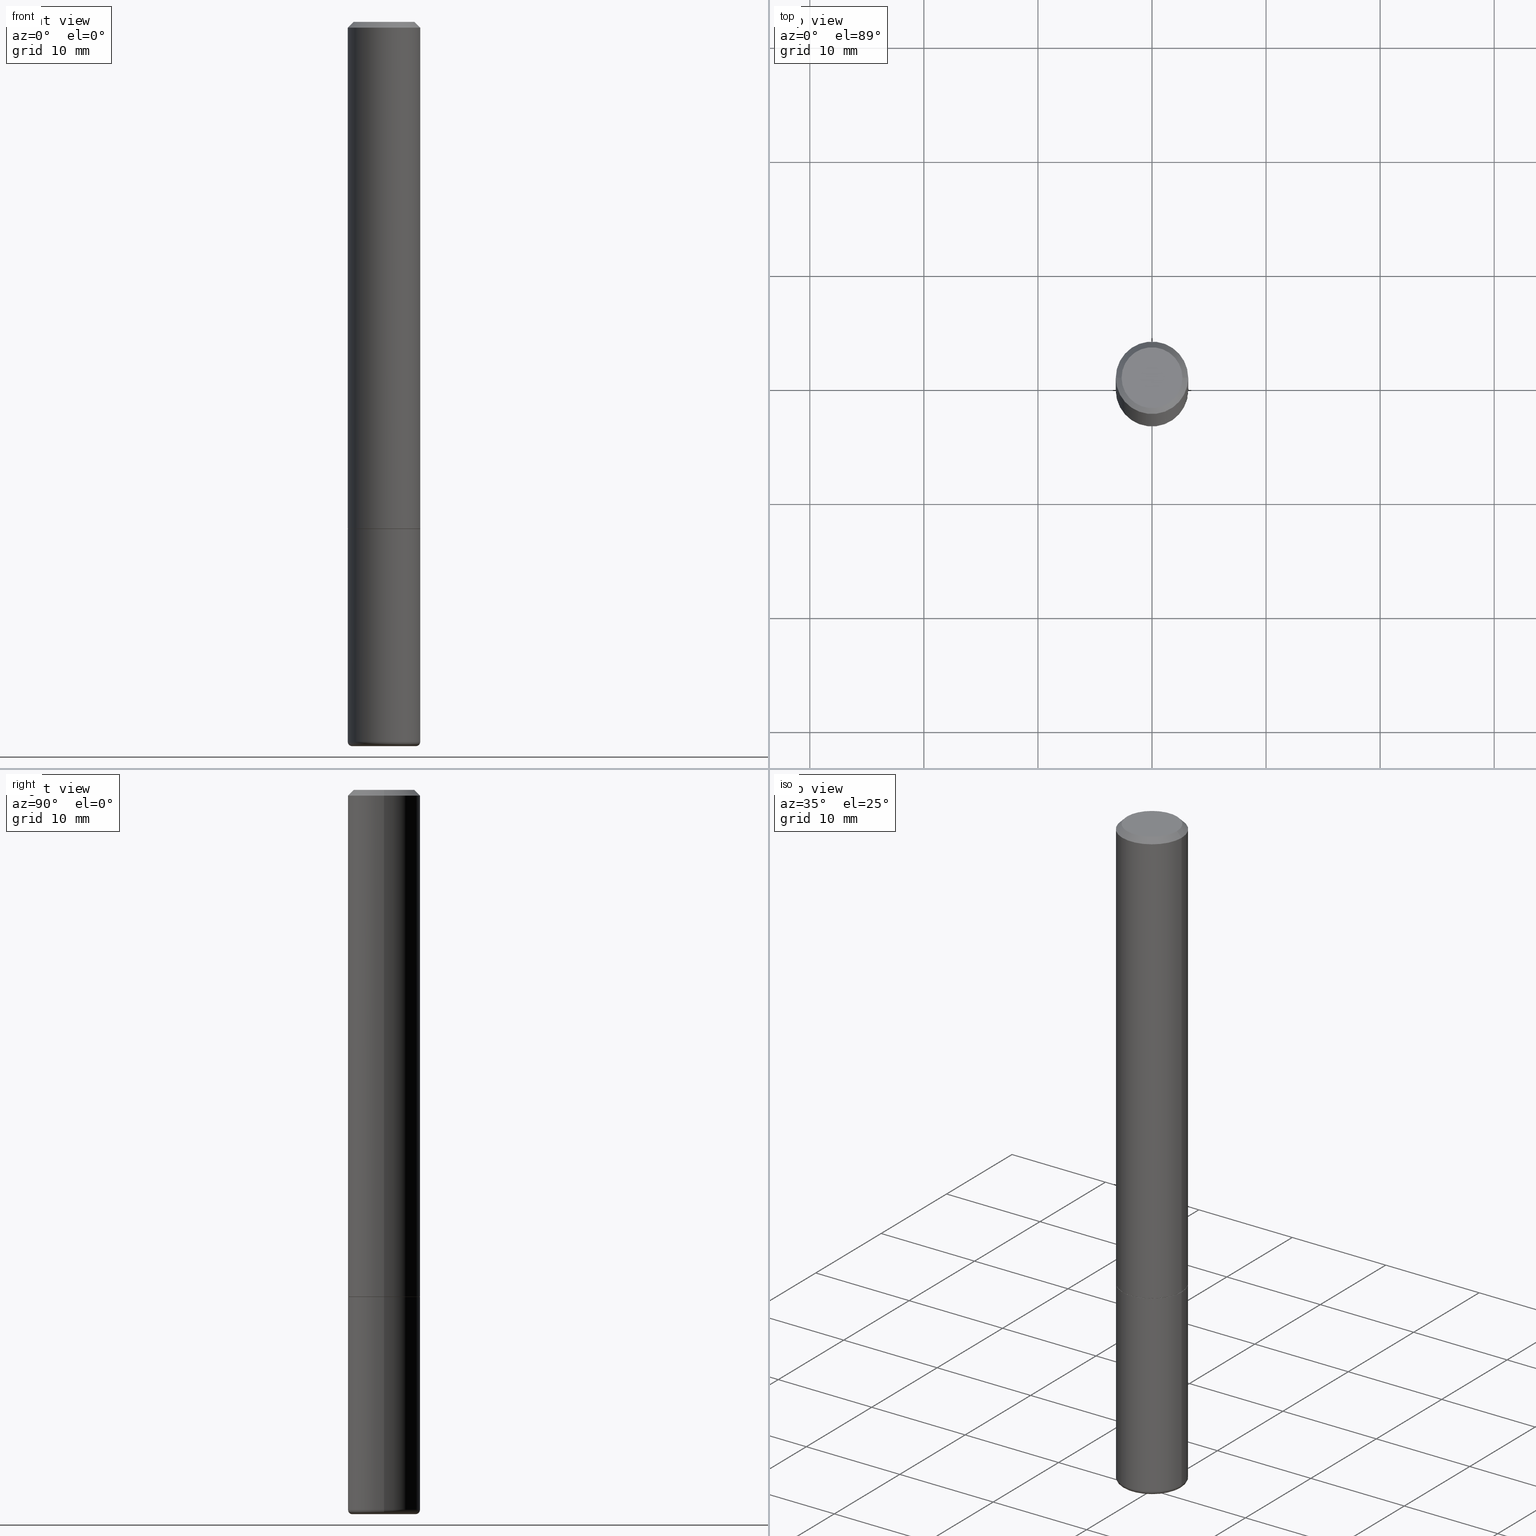
[diagram: canonical four-view strip — front | top / right | iso, engineering-drawing reading convention]
A machine part, canonical four-view strip (front | top / right | iso — engineering-drawing reading convention). The complete STEP part file that produces these views, byte-faithful:
ISO-10303-21;
HEADER;
FILE_DESCRIPTION (( 'STEP AP203' ),
    '1' );
FILE_NAME ('35579.STEP',
    '2022-11-02T20:21:50',
    ( '' ),
    ( '' ),
    'SwSTEP 2.0',
    'SolidWorks 2022',
    '' );
FILE_SCHEMA (( 'CONFIG_CONTROL_DESIGN' ));
ENDSEC;

DATA;
#1 = CARTESIAN_POINT ( 'NONE',  ( 0.000000000000000000, 0.000000000000000000, 0.000000000000000000 ) ) ;
#2 = CARTESIAN_POINT ( 'NONE',  ( 4.279570410823989044E-29, -6.110092342975505460E-15, -1.750000000000000222 ) ) ;
#3 = DIMENSIONAL_EXPONENTS ( 1.000000000000000000, 0.000000000000000000, 0.000000000000000000, 0.000000000000000000, 0.000000000000000000, 0.000000000000000000, 0.000000000000000000 ) ;
#4 = DIRECTION ( 'NONE',  ( -2.445468806185136597E-29, 3.491481338843145583E-15, 1.000000000000000000 ) ) ;
#5 = AXIS2_PLACEMENT_3D ( 'NONE', #10, #467, #159 ) ;
#6 =( LENGTH_UNIT ( ) NAMED_UNIT ( * ) SI_UNIT ( $, .METRE. ) );
#7 = CALENDAR_DATE ( 2022, 2, 11 ) ;
#8 = DIRECTION ( 'NONE',  ( 1.000000000000000000, -6.982962677686269077E-15, 0.000000000000000000 ) ) ;
#9 = PERSON_AND_ORGANIZATION ( #60, #412 ) ;
#10 = CARTESIAN_POINT ( 'NONE',  ( 7.332110811570524037E-16, 0.1049999999999992190, -3.900823592740798305E-16 ) ) ;
#11 = CIRCLE ( 'NONE', #481, 0.1240000000000000269 ) ;
#12 = APPROVAL_PERSON_ORGANIZATION ( #229, #461, #386 ) ;
#13 = PERSON_AND_ORGANIZATION ( #60, #412 ) ;
#14 = VECTOR ( 'NONE', #25, 39.37007874015748143 ) ;
#15 = DIRECTION ( 'NONE',  ( 2.445468806185136597E-29, -3.491481338843145583E-15, -1.000000000000000000 ) ) ;
#16 = PERSON_AND_ORGANIZATION ( #60, #412 ) ;
#17 = CARTESIAN_POINT ( 'NONE',  ( 1.148236555768741665E-45, -1.639377487418492057E-31, -4.695363739110452099E-17 ) ) ;
#18 = APPLICATION_PROTOCOL_DEFINITION ( 'international standard', 'config_control_design', 1994, #431 ) ;
#19 = LINE ( 'NONE', #318, #96 ) ;
#20 = EDGE_CURVE ( 'NONE', #135, #97, #131, .T. ) ;
#21 = SHAPE_DEFINITION_REPRESENTATION ( #82, #462 ) ;
#22 = AXIS2_PLACEMENT_3D ( 'NONE', #377, #4, #305 ) ;
#23 = DIRECTION ( 'NONE',  ( 1.000000000000000000, -6.982962677686269077E-15, 0.000000000000000000 ) ) ;
#24 = EDGE_LOOP ( 'NONE', ( #170, #488 ) ) ;
#25 = DIRECTION ( 'NONE',  ( 0.7071067811865465735, -7.319954787623252890E-15, -0.7071067811865484609 ) ) ;
#26 = ORIENTED_EDGE ( 'NONE', *, *, #209, .F. ) ;
#27 = DIRECTION ( 'NONE',  ( 1.000000000000000000, -6.982962677686266711E-15, 4.876176775795935793E-29 ) ) ;
#28 = ORIENTED_EDGE ( 'NONE', *, *, #253, .T. ) ;
#29 = CIRCLE ( 'NONE', #46, 0.09653660196752465728 ) ;
#30 = CARTESIAN_POINT ( 'NONE',  ( -0.1049999999999992190, 7.681258945454834611E-16, -4.695363739110977184E-17 ) ) ;
#31 =( GEOMETRIC_REPRESENTATION_CONTEXT ( 3 ) GLOBAL_UNCERTAINTY_ASSIGNED_CONTEXT ( ( #163 ) ) GLOBAL_UNIT_ASSIGNED_CONTEXT ( ( #398, #241, #271 ) ) REPRESENTATION_CONTEXT ( 'NONE', 'WORKASPACE' ) );
#32 = ORIENTED_EDGE ( 'NONE', *, *, #107, .T. ) ;
#33 = FACE_OUTER_BOUND ( 'NONE', #226, .T. ) ;
#34 = ORIENTED_EDGE ( 'NONE', *, *, #357, .T. ) ;
#35 = DIRECTION ( 'NONE',  ( -2.445468806185136597E-29, 3.491481338843145583E-15, 1.000000000000000000 ) ) ;
#36 = ORIENTED_EDGE ( 'NONE', *, *, #432, .T. ) ;
#37 = EDGE_CURVE ( 'NONE', #202, #97, #61, .T. ) ;
#38 = ORIENTED_EDGE ( 'NONE', *, *, #405, .T. ) ;
#39 = CARTESIAN_POINT ( 'NONE',  ( -0.1098691019675246544, -7.868095562865759113E-15, -2.500000000000000000 ) ) ;
#40 = CIRCLE ( 'NONE', #473, 0.1098691019675246544 ) ;
#41 = CARTESIAN_POINT ( 'NONE',  ( 0.1250000000000000278, -6.979471196347445792E-15, -1.749000000000000110 ) ) ;
#42 = VERTEX_POINT ( 'NONE', #270 ) ;
#43 = CC_DESIGN_PERSON_AND_ORGANIZATION_ASSIGNMENT ( #237, #429, ( #337 ) ) ;
#44 = ADVANCED_FACE ( 'NONE', ( #474 ), #436, .F. ) ;
#45 = DIRECTION ( 'NONE',  ( -0.9993908270190957621, 6.856857904024556470E-15, -0.03489949670250108021 ) ) ;
#46 = AXIS2_PLACEMENT_3D ( 'NONE', #248, #486, #321 ) ;
#47 = COORDINATED_UNIVERSAL_TIME_OFFSET ( 5, 0, .BEHIND. ) ;
#48 = CARTESIAN_POINT ( 'NONE',  ( 0.09653660196752465728, -9.390586274395309019E-15, -2.499883649035179900 ) ) ;
#49 = CARTESIAN_POINT ( 'NONE',  ( 4.279570410823989044E-29, -6.110092342975505460E-15, -1.750000000000000222 ) ) ;
#50 = ADVANCED_FACE ( 'NONE', ( #201 ), #350, .F. ) ;
#51 = CARTESIAN_POINT ( 'NONE',  ( 0.000000000000000000, 0.000000000000000000, 0.000000000000000000 ) ) ;
#52 = DIRECTION ( 'NONE',  ( -2.445468806185136877E-29, 3.491481338843145188E-15, 1.000000000000000000 ) ) ;
#53 = AXIS2_PLACEMENT_3D ( 'NONE', #324, #169, #63 ) ;
#54 = CONICAL_SURFACE ( 'NONE', #117, 0.1240000000000000269, 0.7853981633974141952 ) ;
#55 = PERSON_AND_ORGANIZATION_ROLE ( 'design_supplier' ) ;
#56 = CIRCLE ( 'NONE', #446, 0.1250000000000000278 ) ;
#57 = CARTESIAN_POINT ( 'NONE',  ( 0.1240000000000000269, -6.975979715008602784E-15, -1.750000000000000222 ) ) ;
#58 = COORDINATED_UNIVERSAL_TIME_OFFSET ( 5, 0, .BEHIND. ) ;
#59 = EDGE_CURVE ( 'NONE', #406, #202, #319, .T. ) ;
#60 = PERSON ( 'UNSPECIFIED', 'UNSPECIFIED', 'UNSPECIFIED', ('UNSPECIFIED'), ('UNSPECIFIED'), ('UNSPECIFIED') ) ;
#61 = LINE ( 'NONE', #439, #302 ) ;
#62 = ORIENTED_EDGE ( 'NONE', *, *, #309, .F. ) ;
#63 = DIRECTION ( 'NONE',  ( -1.000000000000000000, 6.982962677686265922E-15, -4.876176775795935793E-29 ) ) ;
#64 = CC_DESIGN_SECURITY_CLASSIFICATION ( #459, ( #362 ) ) ;
#65 = APPROVAL ( #348, 'UNSPECIFIED' ) ;
#66 = DIRECTION ( 'NONE',  ( 1.000000000000000000, -6.982962677686267499E-15, 0.000000000000000000 ) ) ;
#67 = CARTESIAN_POINT ( 'NONE',  ( 0.000000000000000000, 0.000000000000000000, 0.000000000000000000 ) ) ;
#68 = CARTESIAN_POINT ( 'NONE',  ( 4.890937612370296805E-31, -6.982962677686323656E-17, -0.02000000000000009409 ) ) ;
#69 = ORIENTED_EDGE ( 'NONE', *, *, #425, .F. ) ;
#70 = CIRCLE ( 'NONE', #212, 0.09653660196752465728 ) ;
#71 = DIRECTION ( 'NONE',  ( -2.445468806185136597E-29, 3.491481338843145583E-15, 1.000000000000000000 ) ) ;
#72 = AXIS2_PLACEMENT_3D ( 'NONE', #369, #142, #449 ) ;
#73 = CLOSED_SHELL ( 'NONE', ( #126, #365, #331, #272, #50, #299, #392, #187, #89 ) ) ;
#74 = CARTESIAN_POINT ( 'NONE',  ( -0.1100000000000001948, -7.894736111862769680E-15, -2.485000571154037718 ) ) ;
#75 = DIRECTION ( 'NONE',  ( 1.000000000000000000, -6.982962677686259611E-15, 0.000000000000000000 ) ) ;
#76 = CYLINDRICAL_SURFACE ( 'NONE', #490, 0.1250000000000000278 ) ;
#77 = ORIENTED_EDGE ( 'NONE', *, *, #172, .T. ) ;
#78 = EDGE_CURVE ( 'NONE', #97, #135, #56, .T. ) ;
#79 = AXIS2_PLACEMENT_3D ( 'NONE', #92, #278, #166 ) ;
#80 = CARTESIAN_POINT ( 'NONE',  ( -0.1250000000000000278, 8.881784197001254296E-16, -6.148668862818634329E-30 ) ) ;
#81 = ORIENTED_EDGE ( 'NONE', *, *, #59, .T. ) ;
#82 = PRODUCT_DEFINITION_SHAPE ( 'NONE', 'NONE',  #337 ) ;
#83 = DIRECTION ( 'NONE',  ( -2.445468806185136597E-29, 3.491481338843145583E-15, 1.000000000000000000 ) ) ;
#84 = ORIENTED_EDGE ( 'NONE', *, *, #432, .F. ) ;
#85 = APPROVAL_DATE_TIME ( #120, #65 ) ;
#86 = ORIENTED_EDGE ( 'NONE', *, *, #59, .F. ) ;
#87 = VECTOR ( 'NONE', #225, 39.37007874015748143 ) ;
#88 = CALENDAR_DATE ( 2022, 2, 11 ) ;
#89 = ADVANCED_FACE ( 'NONE', ( #90 ), #396, .F. ) ;
#90 = FACE_OUTER_BOUND ( 'NONE', #230, .T. ) ;
#91 = DATE_AND_TIME ( #160, #153 ) ;
#92 = CARTESIAN_POINT ( 'NONE',  ( 6.076991380109446545E-29, -8.676333121198880578E-15, -2.485000571154037718 ) ) ;
#93 = EDGE_LOOP ( 'NONE', ( #332, #28, #423, #315 ) ) ;
#94 = DIRECTION ( 'NONE',  ( -2.445468806185136877E-29, 3.491481338843145188E-15, 1.000000000000000000 ) ) ;
#95 = CC_DESIGN_PERSON_AND_ORGANIZATION_ASSIGNMENT ( #268, #158, ( #459 ) ) ;
#96 = VECTOR ( 'NONE', #194, 39.37007874015748143 ) ;
#97 = VERTEX_POINT ( 'NONE', #430 ) ;
#98 = DIRECTION ( 'NONE',  ( -2.445468806185136597E-29, 3.491481338843145583E-15, 1.000000000000000000 ) ) ;
#99 = DIRECTION ( 'NONE',  ( 1.000000000000000000, -6.982962677686265922E-15, 4.876176775795935793E-29 ) ) ;
#100 = DIRECTION ( 'NONE',  ( -2.445468806185136597E-29, 3.491481338843145583E-15, 1.000000000000000000 ) ) ;
#101 = VERTEX_POINT ( 'NONE', #123 ) ;
#102 = AXIS2_PLACEMENT_3D ( 'NONE', #67, #208, #27 ) ;
#103 = DIRECTION ( 'NONE',  ( -1.000000000000000000, 6.982962677686261977E-15, 0.000000000000000000 ) ) ;
#104 = DIRECTION ( 'NONE',  ( -2.445468806185136597E-29, 3.491481338843145583E-15, 1.000000000000000000 ) ) ;
#105 = VERTEX_POINT ( 'NONE', #48 ) ;
#106 = LINE ( 'NONE', #256, #196 ) ;
#107 = EDGE_CURVE ( 'NONE', #290, #450, #40, .T. ) ;
#108 = ORIENTED_EDGE ( 'NONE', *, *, #387, .F. ) ;
#109 = EDGE_CURVE ( 'NONE', #182, #42, #19, .T. ) ;
#110 = CONICAL_SURFACE ( 'NONE', #224, 0.1098691019675246544, 1.562069680534929894 ) ;
#111 = DIRECTION ( 'NONE',  ( -2.445468806185136597E-29, 3.491481338843145583E-15, 1.000000000000000000 ) ) ;
#112 = ORIENTED_EDGE ( 'NONE', *, *, #338, .T. ) ;
#113 = DIRECTION ( 'NONE',  ( -0.7071067811865232589, 7.493145998870265808E-15, 0.7071067811865715536 ) ) ;
#114 = FACE_OUTER_BOUND ( 'NONE', #255, .T. ) ;
#115 = DIRECTION ( 'NONE',  ( -2.445468806185136597E-29, 3.491481338843145583E-15, 1.000000000000000000 ) ) ;
#116 = TOROIDAL_SURFACE ( 'NONE', #257, 0.1100000000000001948, 0.01499999999999986934 ) ;
#117 = AXIS2_PLACEMENT_3D ( 'NONE', #417, #115, #304 ) ;
#118 = AXIS2_PLACEMENT_3D ( 'NONE', #121, #98, #132 ) ;
#119 = DIRECTION ( 'NONE',  ( -6.982962677686266711E-15, -1.000000000000000000, 3.491481338843145583E-15 ) ) ;
#120 = DATE_AND_TIME ( #88, #205 ) ;
#121 = CARTESIAN_POINT ( 'NONE',  ( 4.279570410823989044E-29, -6.110092342975505460E-15, -1.750000000000000222 ) ) ;
#122 = AXIS2_PLACEMENT_3D ( 'NONE', #217, #339, #75 ) ;
#123 = CARTESIAN_POINT ( 'NONE',  ( -0.1240000000000000269, -5.223720896284758045E-15, -1.750000000000000222 ) ) ;
#124 = APPROVAL_ROLE ( '' ) ;
#125 = LINE ( 'NONE', #275, #265 ) ;
#126 = ADVANCED_FACE ( 'NONE', ( #190 ), #110, .F. ) ;
#127 = EDGE_LOOP ( 'NONE', ( #34, #147, #409, #437 ) ) ;
#128 = COORDINATED_UNIVERSAL_TIME_OFFSET ( 5, 0, .BEHIND. ) ;
#129 = ORIENTED_EDGE ( 'NONE', *, *, #373, .F. ) ;
#130 = ORIENTED_EDGE ( 'NONE', *, *, #463, .F. ) ;
#131 = CIRCLE ( 'NONE', #118, 0.1250000000000000278 ) ;
#132 = DIRECTION ( 'NONE',  ( 1.000000000000000000, -6.982962677686269077E-15, 0.000000000000000000 ) ) ;
#133 = PRODUCT_RELATED_PRODUCT_CATEGORY ( 'detail', '', ( #243 ) ) ;
#134 = DIRECTION ( 'NONE',  ( 0.9993908270190957621, -6.978169709227541488E-15, -0.03489949670250108021 ) ) ;
#135 = VERTEX_POINT ( 'NONE', #469 ) ;
#136 = EDGE_CURVE ( 'NONE', #174, #101, #11, .T. ) ;
#137 = PLANE ( 'NONE',  #53 ) ;
#138 = AXIS2_PLACEMENT_3D ( 'NONE', #68, #100, #451 ) ;
#139 = CIRCLE ( 'NONE', #293, 0.01499999999999987454 ) ;
#140 = CIRCLE ( 'NONE', #197, 0.1250000000000000278 ) ;
#141 = CARTESIAN_POINT ( 'NONE',  ( 4.890937612370296805E-31, -6.982962677686323656E-17, -0.02000000000000009409 ) ) ;
#142 = DIRECTION ( 'NONE',  ( -2.445468806185136597E-29, 3.491481338843145583E-15, 1.000000000000000000 ) ) ;
#143 = ADVANCED_FACE ( 'NONE', ( #199 ), #349, .F. ) ;
#144 = CARTESIAN_POINT ( 'NONE',  ( 6.113387482807804113E-29, -8.728297109885438444E-15, -2.499883649035179900 ) ) ;
#145 = ORIENTED_EDGE ( 'NONE', *, *, #309, .T. ) ;
#146 = LINE ( 'NONE', #424, #328 ) ;
#147 = ORIENTED_EDGE ( 'NONE', *, *, #425, .T. ) ;
#148 = ORIENTED_EDGE ( 'NONE', *, *, #401, .T. ) ;
#149 = CARTESIAN_POINT ( 'NONE',  ( 6.076991380109446545E-29, -8.676333121198880578E-15, -2.485000571154037718 ) ) ;
#150 = DIRECTION ( 'NONE',  ( -2.445468806185136597E-29, 3.491481338843145583E-15, 1.000000000000000000 ) ) ;
#151 = CARTESIAN_POINT ( 'NONE',  ( -0.1250000000000000278, -2.200036824506626993E-15, -1.749000000000000110 ) ) ;
#152 = AXIS2_PLACEMENT_3D ( 'NONE', #395, #399, #311 ) ;
#153 = LOCAL_TIME ( 16, 21, 50.00000000000000000, #58 ) ;
#154 = ORIENTED_EDGE ( 'NONE', *, *, #176, .F. ) ;
#155 = ADVANCED_FACE ( 'NONE', ( #273 ), #279, .T. ) ;
#156 = DATE_TIME_ROLE ( 'classification_date' ) ;
#157 = DIRECTION ( 'NONE',  ( 2.445468806185136597E-29, -3.491481338843145583E-15, -1.000000000000000000 ) ) ;
#158 = PERSON_AND_ORGANIZATION_ROLE ( 'classification_officer' ) ;
#159 = DIRECTION ( 'NONE',  ( -1.000000000000000000, 6.982962677686265922E-15, -4.876176775795935793E-29 ) ) ;
#160 = CALENDAR_DATE ( 2022, 2, 11 ) ;
#161 = EDGE_CURVE ( 'NONE', #448, #42, #125, .T. ) ;
#162 = DIRECTION ( 'NONE',  ( -1.000000000000000000, 6.982962677686267499E-15, 0.000000000000000000 ) ) ;
#163 = UNCERTAINTY_MEASURE_WITH_UNIT (LENGTH_MEASURE( 1.000000000000000082E-05 ), #398, 'distance_accuracy_value', 'NONE');
#164 = DIRECTION ( 'NONE',  ( -1.000000000000000000, 6.982962677686267499E-15, 0.000000000000000000 ) ) ;
#165 = PERSON_AND_ORGANIZATION ( #60, #412 ) ;
#166 = DIRECTION ( 'NONE',  ( 1.000000000000000000, -6.982962677686269077E-15, 0.000000000000000000 ) ) ;
#167 = AXIS2_PLACEMENT_3D ( 'NONE', #364, #402, #374 ) ;
#168 = TOROIDAL_SURFACE ( 'NONE', #263, 0.1100000000000001948, 0.01499999999999986934 ) ;
#169 = DIRECTION ( 'NONE',  ( 2.438088387897960049E-29, -3.491481338843145188E-15, -1.000000000000000000 ) ) ;
#170 = ORIENTED_EDGE ( 'NONE', *, *, #78, .T. ) ;
#171 = DIRECTION ( 'NONE',  ( -1.000000000000000000, 6.982962677686267499E-15, 0.000000000000000000 ) ) ;
#172 = EDGE_CURVE ( 'NONE', #182, #414, #378, .T. ) ;
#173 = CARTESIAN_POINT ( 'NONE',  ( 0.1240000000000000269, -6.975979715008602784E-15, -1.750000000000000222 ) ) ;
#174 = VERTEX_POINT ( 'NONE', #57 ) ;
#175 = CC_DESIGN_APPROVAL ( #65, ( #362 ) ) ;
#176 = EDGE_CURVE ( 'NONE', #174, #341, #471, .T. ) ;
#177 = CARTESIAN_POINT ( 'NONE',  ( 0.1249999999999992090, -9.273918764982992215E-16, -0.02000000000000009409 ) ) ;
#178 = CARTESIAN_POINT ( 'NONE',  ( 6.076991380109446545E-29, -8.676333121198880578E-15, -2.485000571154037718 ) ) ;
#179 = ORIENTED_EDGE ( 'NONE', *, *, #416, .T. ) ;
#180 = DIRECTION ( 'NONE',  ( 7.105427357601001859E-15, 1.000000000000000000, -3.491481338843145583E-15 ) ) ;
#181 = ORIENTED_EDGE ( 'NONE', *, *, #219, .F. ) ;
#182 = VERTEX_POINT ( 'NONE', #30 ) ;
#183 = CARTESIAN_POINT ( 'NONE',  ( 1.148236555768741665E-45, -1.639377487418492057E-31, -4.695363739110452099E-17 ) ) ;
#184 = CARTESIAN_POINT ( 'NONE',  ( -0.1240000000000000269, -5.229019350632980447E-15, -1.750000000000000222 ) ) ;
#185 = ORIENTED_EDGE ( 'NONE', *, *, #387, .T. ) ;
#186 = DIRECTION ( 'NONE',  ( -1.000000000000000000, 7.105427357600985293E-15, 0.000000000000000000 ) ) ;
#187 = ADVANCED_FACE ( 'NONE', ( #288 ), #116, .T. ) ;
#188 = LOCAL_TIME ( 16, 21, 50.00000000000000000, #128 ) ;
#189 = CALENDAR_DATE ( 2022, 2, 11 ) ;
#190 = FACE_OUTER_BOUND ( 'NONE', #492, .T. ) ;
#191 = DIRECTION ( 'NONE',  ( 1.000000000000000000, 0.000000000000000000, 0.000000000000000000 ) ) ;
#192 = DIRECTION ( 'NONE',  ( 1.000000000000000000, -6.982962677686269077E-15, 0.000000000000000000 ) ) ;
#193 = PERSON_AND_ORGANIZATION_ROLE ( 'design_owner' ) ;
#194 = DIRECTION ( 'NONE',  ( -0.7071067811865465735, 2.468850131082246805E-15, -0.7071067811865484609 ) ) ;
#195 = AXIS2_PLACEMENT_3D ( 'NONE', #144, #329, #103 ) ;
#196 = VECTOR ( 'NONE', #411, 39.37007874015748143 ) ;
#197 = AXIS2_PLACEMENT_3D ( 'NONE', #284, #104, #23 ) ;
#198 = COORDINATED_UNIVERSAL_TIME_OFFSET ( 5, 0, .BEHIND. ) ;
#199 = FACE_OUTER_BOUND ( 'NONE', #334, .T. ) ;
#200 = CALENDAR_DATE ( 2022, 2, 11 ) ;
#201 = FACE_OUTER_BOUND ( 'NONE', #403, .T. ) ;
#202 = VERTEX_POINT ( 'NONE', #214 ) ;
#203 = LINE ( 'NONE', #361, #452 ) ;
#204 = EDGE_CURVE ( 'NONE', #448, #341, #327, .T. ) ;
#205 = LOCAL_TIME ( 16, 21, 50.00000000000000000, #464 ) ;
#206 = FACE_OUTER_BOUND ( 'NONE', #127, .T. ) ;
#207 = ORIENTED_EDGE ( 'NONE', *, *, #401, .F. ) ;
#208 = DIRECTION ( 'NONE',  ( -2.445468806185136597E-29, 3.491481338843145583E-15, 1.000000000000000000 ) ) ;
#209 = EDGE_CURVE ( 'NONE', #346, #105, #70, .T. ) ;
#210 = CYLINDRICAL_SURFACE ( 'NONE', #72, 0.1250000000000000278 ) ;
#211 = ORIENTED_EDGE ( 'NONE', *, *, #161, .T. ) ;
#212 = AXIS2_PLACEMENT_3D ( 'NONE', #326, #71, #478 ) ;
#213 = CLOSED_SHELL ( 'NONE', ( #442, #234, #292, #155, #347, #391, #44, #143 ) ) ;
#214 = CARTESIAN_POINT ( 'NONE',  ( 0.1250000000000000278, -9.549203455909665495E-15, -2.485000571154037718 ) ) ;
#215 = ORIENTED_EDGE ( 'NONE', *, *, #373, .T. ) ;
#216 = CC_DESIGN_PERSON_AND_ORGANIZATION_ASSIGNMENT ( #13, #313, ( #362 ) ) ;
#217 = CARTESIAN_POINT ( 'NONE',  ( 6.113672015462842613E-29, -8.728703347107864943E-15, -2.500000000000000000 ) ) ;
#218 = CARTESIAN_POINT ( 'NONE',  ( 0.1049999999999992190, -8.238720831321523396E-16, -4.695363739109907908E-17 ) ) ;
#219 = EDGE_CURVE ( 'NONE', #341, #448, #140, .T. ) ;
#220 = DESIGN_CONTEXT ( 'detailed design', #421, 'design' ) ;
#221 = AXIS2_PLACEMENT_3D ( 'NONE', #141, #286, #66 ) ;
#222 = CC_DESIGN_APPROVAL ( #231, ( #337 ) ) ;
#223 = CYLINDRICAL_SURFACE ( 'NONE', #352, 0.1249999999999996253 ) ;
#224 = AXIS2_PLACEMENT_3D ( 'NONE', #314, #157, #308 ) ;
#225 = DIRECTION ( 'NONE',  ( -2.445468806185136877E-29, 3.491481338843145188E-15, 1.000000000000000000 ) ) ;
#226 = EDGE_LOOP ( 'NONE', ( #472, #211, #397, #325 ) ) ;
#227 = EDGE_CURVE ( 'NONE', #240, #105, #203, .T. ) ;
#228 = DIRECTION ( 'NONE',  ( 1.000000000000000000, -6.982962677686267499E-15, 4.874400871621274649E-29 ) ) ;
#229 = PERSON_AND_ORGANIZATION ( #60, #412 ) ;
#230 = EDGE_LOOP ( 'NONE', ( #108, #418, #145, #383 ) ) ;
#231 = APPROVAL ( #345, 'UNSPECIFIED' ) ;
#232 = PERSON_AND_ORGANIZATION ( #60, #412 ) ;
#233 = CARTESIAN_POINT ( 'NONE',  ( 6.113672015462842613E-29, -8.728703347107864943E-15, -2.500000000000000000 ) ) ;
#234 = ADVANCED_FACE ( 'NONE', ( #33 ), #330, .T. ) ;
#235 = DATE_TIME_ROLE ( 'creation_date' ) ;
#236 = DIRECTION ( 'NONE',  ( -2.445468806185136597E-29, 3.491481338843145583E-15, 1.000000000000000000 ) ) ;
#237 = PERSON_AND_ORGANIZATION ( #60, #412 ) ;
#238 = DIRECTION ( 'NONE',  ( 1.000000000000000000, -6.982962677686267499E-15, 4.874400871621274649E-29 ) ) ;
#239 = AXIS2_PLACEMENT_3D ( 'NONE', #289, #447, #171 ) ;
#240 = VERTEX_POINT ( 'NONE', #487 ) ;
#241 =( NAMED_UNIT ( * ) PLANE_ANGLE_UNIT ( ) SI_UNIT ( $, .RADIAN. ) );
#242 = DIRECTION ( 'NONE',  ( -2.438088387897960049E-29, 3.491481338843145188E-15, 1.000000000000000000 ) ) ;
#243 = PRODUCT ( '35579', '35579', '', ( #468 ) ) ;
#244 = ORIENTED_EDGE ( 'NONE', *, *, #482, .T. ) ;
#245 = EDGE_CURVE ( 'NONE', #42, #375, #370, .T. ) ;
#246 = CARTESIAN_POINT ( 'NONE',  ( 0.1098691019675246544, -9.495915185577995199E-15, -2.500000000000000000 ) ) ;
#247 = ORIENTED_EDGE ( 'NONE', *, *, #405, .F. ) ;
#248 = CARTESIAN_POINT ( 'NONE',  ( 6.113387482807804113E-29, -8.728297109885438444E-15, -2.499883649035179900 ) ) ;
#249 = AXIS2_PLACEMENT_3D ( 'NONE', #353, #15, #162 ) ;
#250 = CIRCLE ( 'NONE', #285, 0.1250000000000000278 ) ;
#251 = ORIENTED_EDGE ( 'NONE', *, *, #37, .T. ) ;
#252 = FACE_OUTER_BOUND ( 'NONE', #93, .T. ) ;
#253 = EDGE_CURVE ( 'NONE', #414, #375, #367, .T. ) ;
#254 = FACE_OUTER_BOUND ( 'NONE', #344, .T. ) ;
#255 = EDGE_LOOP ( 'NONE', ( #129, #38, #366, #276 ) ) ;
#256 = CARTESIAN_POINT ( 'NONE',  ( 0.1249999999999996253, -8.728703347107806764E-16, 6.095220969744901524E-30 ) ) ;
#257 = AXIS2_PLACEMENT_3D ( 'NONE', #178, #483, #476 ) ;
#258 = VECTOR ( 'NONE', #113, 39.37007874015748854 ) ;
#259 = FACE_OUTER_BOUND ( 'NONE', #491, .T. ) ;
#260 = ORIENTED_EDGE ( 'NONE', *, *, #253, .F. ) ;
#261 = FACE_OUTER_BOUND ( 'NONE', #296, .T. ) ;
#262 = DIRECTION ( 'NONE',  ( 1.000000000000000000, -6.982962677686269077E-15, 0.000000000000000000 ) ) ;
#263 = AXIS2_PLACEMENT_3D ( 'NONE', #456, #111, #297 ) ;
#264 = CARTESIAN_POINT ( 'NONE',  ( -0.1250000000000000278, -6.505034312387068576E-15, -2.485000571154037718 ) ) ;
#265 = VECTOR ( 'NONE', #94, 39.37007874015748143 ) ;
#266 = EDGE_CURVE ( 'NONE', #375, #42, #485, .T. ) ;
#267 = DIRECTION ( 'NONE',  ( 1.000000000000000000, -6.982962677686326664E-15, 0.000000000000000000 ) ) ;
#268 = PERSON_AND_ORGANIZATION ( #60, #412 ) ;
#269 = LOCAL_TIME ( 16, 21, 50.00000000000000000, #47 ) ;
#270 = CARTESIAN_POINT ( 'NONE',  ( -0.1249999999999992090, 8.030407079339147158E-16, -0.02000000000000009409 ) ) ;
#271 =( NAMED_UNIT ( * ) SI_UNIT ( $, .STERADIAN. ) SOLID_ANGLE_UNIT ( ) );
#272 = ADVANCED_FACE ( 'NONE', ( #254 ), #419, .F. ) ;
#273 = FACE_OUTER_BOUND ( 'NONE', #368, .T. ) ;
#274 = SECURITY_CLASSIFICATION_LEVEL ( 'unclassified' ) ;
#275 = CARTESIAN_POINT ( 'NONE',  ( -0.1249999999999996253, 8.881784197001225699E-16, -6.148668862818613310E-30 ) ) ;
#276 = ORIENTED_EDGE ( 'NONE', *, *, #204, .F. ) ;
#277 = DIRECTION ( 'NONE',  ( 0.000000000000000000, 0.000000000000000000, 1.000000000000000000 ) ) ;
#278 = DIRECTION ( 'NONE',  ( -2.445468806185136597E-29, 3.491481338843145583E-15, 1.000000000000000000 ) ) ;
#279 = CONICAL_SURFACE ( 'NONE', #249, 0.1249999999999992090, 0.7853981633974469467 ) ;
#280 = AXIS2_PLACEMENT_3D ( 'NONE', #51, #277, #191 ) ;
#281 = CARTESIAN_POINT ( 'NONE',  ( 6.113672015462842613E-29, -8.728703347107864943E-15, -2.500000000000000000 ) ) ;
#282 = LINE ( 'NONE', #408, #342 ) ;
#283 = ORIENTED_EDGE ( 'NONE', *, *, #227, .F. ) ;
#284 = CARTESIAN_POINT ( 'NONE',  ( 4.277124942017804562E-29, -6.106600861636661664E-15, -1.749000000000000110 ) ) ;
#285 = AXIS2_PLACEMENT_3D ( 'NONE', #149, #333, #262 ) ;
#286 = DIRECTION ( 'NONE',  ( -2.445468806185136597E-29, 3.491481338843145583E-15, 1.000000000000000000 ) ) ;
#287 = EDGE_LOOP ( 'NONE', ( #427, #247 ) ) ;
#288 = FACE_OUTER_BOUND ( 'NONE', #400, .T. ) ;
#289 = CARTESIAN_POINT ( 'NONE',  ( 4.890937612370296805E-31, -6.982962677686323656E-17, -0.02000000000000009409 ) ) ;
#290 = VERTEX_POINT ( 'NONE', #246 ) ;
#291 = CIRCLE ( 'NONE', #484, 0.1049999999999992190 ) ;
#292 = ADVANCED_FACE ( 'NONE', ( #252 ), #458, .T. ) ;
#293 = AXIS2_PLACEMENT_3D ( 'NONE', #460, #119, #267 ) ;
#294 = CARTESIAN_POINT ( 'NONE',  ( 0.1098691019675246544, -9.482460101173023392E-15, -2.500000000000000000 ) ) ;
#295 = ORIENTED_EDGE ( 'NONE', *, *, #416, .F. ) ;
#296 = EDGE_LOOP ( 'NONE', ( #389, #479, #112, #298 ) ) ;
#297 = DIRECTION ( 'NONE',  ( 1.000000000000000000, -6.982962677686266711E-15, 4.883557194083113462E-29 ) ) ;
#298 = ORIENTED_EDGE ( 'NONE', *, *, #245, .F. ) ;
#299 = ADVANCED_FACE ( 'NONE', ( #407 ), #137, .F. ) ;
#300 = DIRECTION ( 'NONE',  ( -2.445468806185136597E-29, 3.491481338843145583E-15, 1.000000000000000000 ) ) ;
#301 = EDGE_CURVE ( 'NONE', #105, #346, #29, .T. ) ;
#302 = VECTOR ( 'NONE', #52, 39.37007874015748143 ) ;
#303 = LOCAL_TIME ( 16, 21, 50.00000000000000000, #198 ) ;
#304 = DIRECTION ( 'NONE',  ( 1.000000000000000000, -6.982962677686269077E-15, 0.000000000000000000 ) ) ;
#305 = DIRECTION ( 'NONE',  ( 1.000000000000000000, -6.982962677686269077E-15, 0.000000000000000000 ) ) ;
#306 = ORIENTED_EDGE ( 'NONE', *, *, #301, .F. ) ;
#307 = DATE_AND_TIME ( #7, #269 ) ;
#308 = DIRECTION ( 'NONE',  ( -1.000000000000000000, 6.982962677686267499E-15, 0.000000000000000000 ) ) ;
#309 = EDGE_CURVE ( 'NONE', #346, #450, #282, .T. ) ;
#310 = VECTOR ( 'NONE', #444, 39.37007874015748854 ) ;
#311 = DIRECTION ( 'NONE',  ( -1.000000000000000000, 6.982962677686261977E-15, 0.000000000000000000 ) ) ;
#312 = ORIENTED_EDGE ( 'NONE', *, *, #357, .F. ) ;
#313 = PERSON_AND_ORGANIZATION_ROLE ( 'creator' ) ;
#314 = CARTESIAN_POINT ( 'NONE',  ( 6.113672015462842613E-29, -8.728703347107864943E-15, -2.500000000000000000 ) ) ;
#315 = ORIENTED_EDGE ( 'NONE', *, *, #109, .F. ) ;
#316 = DIRECTION ( 'NONE',  ( -2.445468806185136597E-29, 3.491481338843145583E-15, 1.000000000000000000 ) ) ;
#317 = ORIENTED_EDGE ( 'NONE', *, *, #172, .F. ) ;
#318 = CARTESIAN_POINT ( 'NONE',  ( -0.1249999999999992090, 8.030407079339147158E-16, -0.02000000000000009409 ) ) ;
#319 = CIRCLE ( 'NONE', #79, 0.1250000000000000278 ) ;
#320 = VECTOR ( 'NONE', #343, 39.37007874015748854 ) ;
#321 = DIRECTION ( 'NONE',  ( 1.000000000000000000, -6.982962677686261977E-15, 0.000000000000000000 ) ) ;
#322 = CC_DESIGN_DATE_AND_TIME_ASSIGNMENT ( #356, #156, ( #459 ) ) ;
#323 = ORIENTED_EDGE ( 'NONE', *, *, #245, .T. ) ;
#324 = CARTESIAN_POINT ( 'NONE',  ( 8.728703347108263317E-16, 0.1249999999999939215, -1.750000000000000666 ) ) ;
#325 = ORIENTED_EDGE ( 'NONE', *, *, #338, .F. ) ;
#326 = CARTESIAN_POINT ( 'NONE',  ( 6.113387482807804113E-29, -8.728297109885438444E-15, -2.499883649035179900 ) ) ;
#327 = CIRCLE ( 'NONE', #167, 0.1250000000000000278 ) ;
#328 = VECTOR ( 'NONE', #45, 39.37007874015748143 ) ;
#329 = DIRECTION ( 'NONE',  ( 2.445468806185136597E-29, -3.491481338843145583E-15, -1.000000000000000000 ) ) ;
#330 = CYLINDRICAL_SURFACE ( 'NONE', #102, 0.1249999999999996253 ) ;
#331 = ADVANCED_FACE ( 'NONE', ( #206 ), #210, .T. ) ;
#332 = ORIENTED_EDGE ( 'NONE', *, *, #482, .F. ) ;
#333 = DIRECTION ( 'NONE',  ( -2.445468806185136597E-29, 3.491481338843145583E-15, 1.000000000000000000 ) ) ;
#334 = EDGE_LOOP ( 'NONE', ( #77, #244 ) ) ;
#335 = CC_DESIGN_APPROVAL ( #461, ( #459 ) ) ;
#336 = CARTESIAN_POINT ( 'NONE',  ( -0.09653660196752465728, -8.054185621315559695E-15, -2.499883649035179900 ) ) ;
#337 = PRODUCT_DEFINITION ( 'UNKNOWN', '', #362, #220 ) ;
#338 = EDGE_CURVE ( 'NONE', #341, #375, #106, .T. ) ;
#339 = DIRECTION ( 'NONE',  ( -2.445468806185136597E-29, 3.491481338843145583E-15, 1.000000000000000000 ) ) ;
#340 = LINE ( 'NONE', #184, #258 ) ;
#341 = VERTEX_POINT ( 'NONE', #41 ) ;
#342 = VECTOR ( 'NONE', #404, 39.37007874015748854 ) ;
#343 = DIRECTION ( 'NONE',  ( 0.9999619230641714207, -6.890705306874825328E-15, -0.008726535498369011531 ) ) ;
#344 = EDGE_LOOP ( 'NONE', ( #295, #475, #26 ) ) ;
#345 = APPROVAL_STATUS ( 'not_yet_approved' ) ;
#346 = VERTEX_POINT ( 'NONE', #336 ) ;
#347 = ADVANCED_FACE ( 'NONE', ( #261 ), #223, .T. ) ;
#348 = APPROVAL_STATUS ( 'not_yet_approved' ) ;
#349 = PLANE ( 'NONE',  #5 ) ;
#350 = CONICAL_SURFACE ( 'NONE', #152, 0.09653660196752465728, 1.535889741755009918 ) ;
#351 = APPROVAL_ROLE ( '' ) ;
#352 = AXIS2_PLACEMENT_3D ( 'NONE', #1, #150, #381 ) ;
#353 = CARTESIAN_POINT ( 'NONE',  ( 4.890937612370296805E-31, -6.982962677686323656E-17, -0.02000000000000009409 ) ) ;
#354 = AXIS2_PLACEMENT_3D ( 'NONE', #281, #359, #164 ) ;
#355 = CC_DESIGN_DATE_AND_TIME_ASSIGNMENT ( #393, #235, ( #337 ) ) ;
#356 = DATE_AND_TIME ( #189, #303 ) ;
#357 = EDGE_CURVE ( 'NONE', #202, #406, #250, .T. ) ;
#358 = DIRECTION ( 'NONE',  ( -2.445468806185136597E-29, 3.491481338843145583E-15, 1.000000000000000000 ) ) ;
#359 = DIRECTION ( 'NONE',  ( 2.445468806185136597E-29, -3.491481338843145583E-15, -1.000000000000000000 ) ) ;
#360 = CC_DESIGN_PERSON_AND_ORGANIZATION_ASSIGNMENT ( #9, #55, ( #362 ) ) ;
#361 = CARTESIAN_POINT ( 'NONE',  ( 0.09653660196752465728, -9.390586274395309019E-15, -2.499883649035179900 ) ) ;
#362 = PRODUCT_DEFINITION_FORMATION_WITH_SPECIFIED_SOURCE ( 'ANY', '', #243, .NOT_KNOWN. ) ;
#363 = ORIENTED_EDGE ( 'NONE', *, *, #463, .T. ) ;
#364 = CARTESIAN_POINT ( 'NONE',  ( 4.277124942017804562E-29, -6.106600861636661664E-15, -1.749000000000000110 ) ) ;
#365 = ADVANCED_FACE ( 'NONE', ( #259 ), #168, .T. ) ;
#366 = ORIENTED_EDGE ( 'NONE', *, *, #176, .T. ) ;
#367 = LINE ( 'NONE', #177, #14 ) ;
#368 = EDGE_LOOP ( 'NONE', ( #260, #317, #465, #323 ) ) ;
#369 = CARTESIAN_POINT ( 'NONE',  ( 0.000000000000000000, 0.000000000000000000, 0.000000000000000000 ) ) ;
#370 = CIRCLE ( 'NONE', #138, 0.1249999999999992090 ) ;
#371 = AXIS2_PLACEMENT_3D ( 'NONE', #2, #300, #457 ) ;
#372 = EDGE_LOOP ( 'NONE', ( #69, #81, #251, #380 ) ) ;
#373 = EDGE_CURVE ( 'NONE', #101, #448, #340, .T. ) ;
#374 = DIRECTION ( 'NONE',  ( 1.000000000000000000, -6.982962677686269077E-15, 0.000000000000000000 ) ) ;
#375 = VERTEX_POINT ( 'NONE', #455 ) ;
#376 = FACE_OUTER_BOUND ( 'NONE', #454, .T. ) ;
#377 = CARTESIAN_POINT ( 'NONE',  ( 4.279570410823989044E-29, -6.110092342975505460E-15, -1.750000000000000222 ) ) ;
#378 = CIRCLE ( 'NONE', #384, 0.1049999999999992190 ) ;
#379 = DIRECTION ( 'NONE',  ( 1.000000000000000000, -6.982962677686267499E-15, 4.876176775795935793E-29 ) ) ;
#380 = ORIENTED_EDGE ( 'NONE', *, *, #20, .F. ) ;
#381 = DIRECTION ( 'NONE',  ( 1.000000000000000000, -6.982962677686266711E-15, 4.876176775795935793E-29 ) ) ;
#382 = FACE_OUTER_BOUND ( 'NONE', #372, .T. ) ;
#383 = ORIENTED_EDGE ( 'NONE', *, *, #107, .F. ) ;
#384 = AXIS2_PLACEMENT_3D ( 'NONE', #17, #358, #238 ) ;
#385 = CIRCLE ( 'NONE', #122, 0.1098691019675246544 ) ;
#386 = APPROVAL_ROLE ( '' ) ;
#387 = EDGE_CURVE ( 'NONE', #105, #290, #489, .T. ) ;
#388 = CARTESIAN_POINT ( 'NONE',  ( 4.279570410823989044E-29, -6.110092342975505460E-15, -1.750000000000000222 ) ) ;
#389 = ORIENTED_EDGE ( 'NONE', *, *, #161, .F. ) ;
#390 = ORIENTED_EDGE ( 'NONE', *, *, #209, .T. ) ;
#391 = ADVANCED_FACE ( 'NONE', ( #114 ), #54, .T. ) ;
#392 = ADVANCED_FACE ( 'NONE', ( #382 ), #76, .T. ) ;
#393 = DATE_AND_TIME ( #200, #188 ) ;
#394 = APPROVAL_PERSON_ORGANIZATION ( #16, #231, #124 ) ;
#395 = CARTESIAN_POINT ( 'NONE',  ( 6.113387482807804113E-29, -8.728297109885438444E-15, -2.499883649035179900 ) ) ;
#396 = CONICAL_SURFACE ( 'NONE', #354, 0.1098691019675246544, 1.562069680534929894 ) ;
#397 = ORIENTED_EDGE ( 'NONE', *, *, #266, .F. ) ;
#398 =( CONVERSION_BASED_UNIT ( 'INCH', #435 ) LENGTH_UNIT ( ) NAMED_UNIT ( #3 ) );
#399 = DIRECTION ( 'NONE',  ( 2.445468806185136597E-29, -3.491481338843145583E-15, -1.000000000000000000 ) ) ;
#400 = EDGE_LOOP ( 'NONE', ( #84, #148, #363, #86 ) ) ;
#401 = EDGE_CURVE ( 'NONE', #450, #290, #385, .T. ) ;
#402 = DIRECTION ( 'NONE',  ( -2.445468806185136597E-29, 3.491481338843145583E-15, 1.000000000000000000 ) ) ;
#403 = EDGE_LOOP ( 'NONE', ( #283, #179, #306 ) ) ;
#404 = DIRECTION ( 'NONE',  ( -0.9999619230641714207, 6.952228252019186602E-15, -0.008726535498369011531 ) ) ;
#405 = EDGE_CURVE ( 'NONE', #101, #174, #453, .T. ) ;
#406 = VERTEX_POINT ( 'NONE', #264 ) ;
#407 = FACE_OUTER_BOUND ( 'NONE', #24, .T. ) ;
#408 = CARTESIAN_POINT ( 'NONE',  ( -0.1098691019675246544, -7.961491508637733109E-15, -2.500000000000000000 ) ) ;
#409 = ORIENTED_EDGE ( 'NONE', *, *, #78, .F. ) ;
#410 = MANIFOLD_SOLID_BREP ( 'Body-Move/Copy2[1]', #73 ) ;
#411 = DIRECTION ( 'NONE',  ( -2.445468806185136877E-29, 3.491481338843145188E-15, 1.000000000000000000 ) ) ;
#412 = ORGANIZATION ( 'UNSPECIFIED', 'UNSPECIFIED', '' ) ;
#413 = MANIFOLD_SOLID_BREP ( 'Body-Move/Copy2[2]', #213 ) ;
#414 = VERTEX_POINT ( 'NONE', #218 ) ;
#415 = CARTESIAN_POINT ( 'NONE',  ( 0.000000000000000000, 0.000000000000000000, 0.000000000000000000 ) ) ;
#416 = EDGE_CURVE ( 'NONE', #240, #346, #146, .T. ) ;
#417 = CARTESIAN_POINT ( 'NONE',  ( 4.279570410823989044E-29, -6.110092342975505460E-15, -1.750000000000000222 ) ) ;
#418 = ORIENTED_EDGE ( 'NONE', *, *, #301, .T. ) ;
#419 = CONICAL_SURFACE ( 'NONE', #195, 0.09653660196752465728, 1.535889741755009918 ) ;
#420 = CIRCLE ( 'NONE', #438, 0.01499999999999987454 ) ;
#421 = APPLICATION_CONTEXT ( 'configuration controlled 3d designs of mechanical parts and assemblies' ) ;
#422 = LINE ( 'NONE', #80, #87 ) ;
#423 = ORIENTED_EDGE ( 'NONE', *, *, #266, .T. ) ;
#424 = CARTESIAN_POINT ( 'NONE',  ( -0.09653660196752465728, -8.054185621315559695E-15, -2.499883649035179900 ) ) ;
#425 = EDGE_CURVE ( 'NONE', #406, #135, #422, .T. ) ;
#426 = APPLICATION_PROTOCOL_DEFINITION ( 'international standard', 'config_control_design', 1994, #421 ) ;
#427 = ORIENTED_EDGE ( 'NONE', *, *, #136, .F. ) ;
#428 = APPROVAL_PERSON_ORGANIZATION ( #232, #65, #351 ) ;
#429 = PERSON_AND_ORGANIZATION_ROLE ( 'creator' ) ;
#430 = CARTESIAN_POINT ( 'NONE',  ( 0.1250000000000000278, -6.982962677686288799E-15, -1.750000000000000222 ) ) ;
#431 = APPLICATION_CONTEXT ( 'configuration controlled 3d designs of mechanical parts and assemblies' ) ;
#432 = EDGE_CURVE ( 'NONE', #450, #406, #420, .T. ) ;
#433 = APPROVAL_DATE_TIME ( #91, #231 ) ;
#434 = CARTESIAN_POINT ( 'NONE',  ( 4.279570410823989044E-29, -6.110092342975505460E-15, -1.750000000000000222 ) ) ;
#435 = LENGTH_MEASURE_WITH_UNIT ( LENGTH_MEASURE( 0.02539999999999999897 ), #6 );
#436 = PLANE ( 'NONE',  #443 ) ;
#437 = ORIENTED_EDGE ( 'NONE', *, *, #37, .F. ) ;
#438 = AXIS2_PLACEMENT_3D ( 'NONE', #74, #180, #186 ) ;
#439 = CARTESIAN_POINT ( 'NONE',  ( 0.1250000000000000278, -8.728703347107836346E-16, 6.095220969744921142E-30 ) ) ;
#440 = DIRECTION ( 'NONE',  ( 1.000000000000000000, -6.982962677686259611E-15, 0.000000000000000000 ) ) ;
#441 = CC_DESIGN_PERSON_AND_ORGANIZATION_ASSIGNMENT ( #165, #193, ( #243 ) ) ;
#442 = ADVANCED_FACE ( 'NONE', ( #376 ), #445, .T. ) ;
#443 = AXIS2_PLACEMENT_3D ( 'NONE', #434, #242, #99 ) ;
#444 = DIRECTION ( 'NONE',  ( 0.7071067811865232589, -2.468850131082003836E-15, 0.7071067811865715536 ) ) ;
#445 = CONICAL_SURFACE ( 'NONE', #22, 0.1240000000000000269, 0.7853981633974141952 ) ;
#446 = AXIS2_PLACEMENT_3D ( 'NONE', #388, #466, #8 ) ;
#447 = DIRECTION ( 'NONE',  ( 2.445468806185136597E-29, -3.491481338843145583E-15, -1.000000000000000000 ) ) ;
#448 = VERTEX_POINT ( 'NONE', #151 ) ;
#449 = DIRECTION ( 'NONE',  ( 1.000000000000000000, -6.982962677686267499E-15, 4.876176775795935793E-29 ) ) ;
#450 = VERTEX_POINT ( 'NONE', #39 ) ;
#451 = DIRECTION ( 'NONE',  ( 1.000000000000000000, -6.982962677686267499E-15, 0.000000000000000000 ) ) ;
#452 = VECTOR ( 'NONE', #134, 39.37007874015748143 ) ;
#453 = CIRCLE ( 'NONE', #371, 0.1240000000000000269 ) ;
#454 = EDGE_LOOP ( 'NONE', ( #477, #215, #181, #154 ) ) ;
#455 = CARTESIAN_POINT ( 'NONE',  ( 0.1249999999999992090, -9.273918764982992215E-16, -0.02000000000000009409 ) ) ;
#456 = CARTESIAN_POINT ( 'NONE',  ( 6.076991380109446545E-29, -8.676333121198880578E-15, -2.485000571154037718 ) ) ;
#457 = DIRECTION ( 'NONE',  ( 1.000000000000000000, -6.982962677686269077E-15, 0.000000000000000000 ) ) ;
#458 = CONICAL_SURFACE ( 'NONE', #239, 0.1249999999999992090, 0.7853981633974469467 ) ;
#459 = SECURITY_CLASSIFICATION ( '', '', #274 ) ;
#460 = CARTESIAN_POINT ( 'NONE',  ( 0.1100000000000001948, -9.444459015744370548E-15, -2.485000571154037718 ) ) ;
#461 = APPROVAL ( #470, 'UNSPECIFIED' ) ;
#462 = ADVANCED_BREP_SHAPE_REPRESENTATION ( '35579', ( #410, #413, #280 ), #31 ) ;
#463 = EDGE_CURVE ( 'NONE', #290, #202, #139, .T. ) ;
#464 = COORDINATED_UNIVERSAL_TIME_OFFSET ( 5, 0, .BEHIND. ) ;
#465 = ORIENTED_EDGE ( 'NONE', *, *, #109, .T. ) ;
#466 = DIRECTION ( 'NONE',  ( -2.445468806185136597E-29, 3.491481338843145583E-15, 1.000000000000000000 ) ) ;
#467 = DIRECTION ( 'NONE',  ( 2.438088387897960049E-29, -3.491481338843145188E-15, -1.000000000000000000 ) ) ;
#468 = MECHANICAL_CONTEXT ( 'NONE', #431, 'mechanical' ) ;
#469 = CARTESIAN_POINT ( 'NONE',  ( -0.1250000000000000278, -6.505034312387068576E-15, -1.750000000000000222 ) ) ;
#470 = APPROVAL_STATUS ( 'not_yet_approved' ) ;
#471 = LINE ( 'NONE', #173, #310 ) ;
#472 = ORIENTED_EDGE ( 'NONE', *, *, #219, .T. ) ;
#473 = AXIS2_PLACEMENT_3D ( 'NONE', #233, #316, #440 ) ;
#474 = FACE_OUTER_BOUND ( 'NONE', #287, .T. ) ;
#475 = ORIENTED_EDGE ( 'NONE', *, *, #227, .T. ) ;
#476 = DIRECTION ( 'NONE',  ( 1.000000000000000000, -6.982962677686266711E-15, 4.883557194083113462E-29 ) ) ;
#477 = ORIENTED_EDGE ( 'NONE', *, *, #136, .T. ) ;
#478 = DIRECTION ( 'NONE',  ( 1.000000000000000000, -6.982962677686261977E-15, 0.000000000000000000 ) ) ;
#479 = ORIENTED_EDGE ( 'NONE', *, *, #204, .T. ) ;
#480 = APPROVAL_DATE_TIME ( #307, #461 ) ;
#481 = AXIS2_PLACEMENT_3D ( 'NONE', #49, #236, #192 ) ;
#482 = EDGE_CURVE ( 'NONE', #414, #182, #291, .T. ) ;
#483 = DIRECTION ( 'NONE',  ( -2.445468806185136597E-29, 3.491481338843145583E-15, 1.000000000000000000 ) ) ;
#484 = AXIS2_PLACEMENT_3D ( 'NONE', #183, #83, #228 ) ;
#485 = CIRCLE ( 'NONE', #221, 0.1249999999999992090 ) ;
#486 = DIRECTION ( 'NONE',  ( -2.445468806185136597E-29, 3.491481338843145583E-15, 1.000000000000000000 ) ) ;
#487 = CARTESIAN_POINT ( 'NONE',  ( 6.102708739358298618E-29, -8.720013556295160926E-15, -2.496512516610355448 ) ) ;
#488 = ORIENTED_EDGE ( 'NONE', *, *, #20, .T. ) ;
#489 = LINE ( 'NONE', #294, #320 ) ;
#490 = AXIS2_PLACEMENT_3D ( 'NONE', #415, #35, #379 ) ;
#491 = EDGE_LOOP ( 'NONE', ( #32, #36, #312, #130 ) ) ;
#492 = EDGE_LOOP ( 'NONE', ( #390, #185, #207, #62 ) ) ;
ENDSEC;
END-ISO-10303-21;
